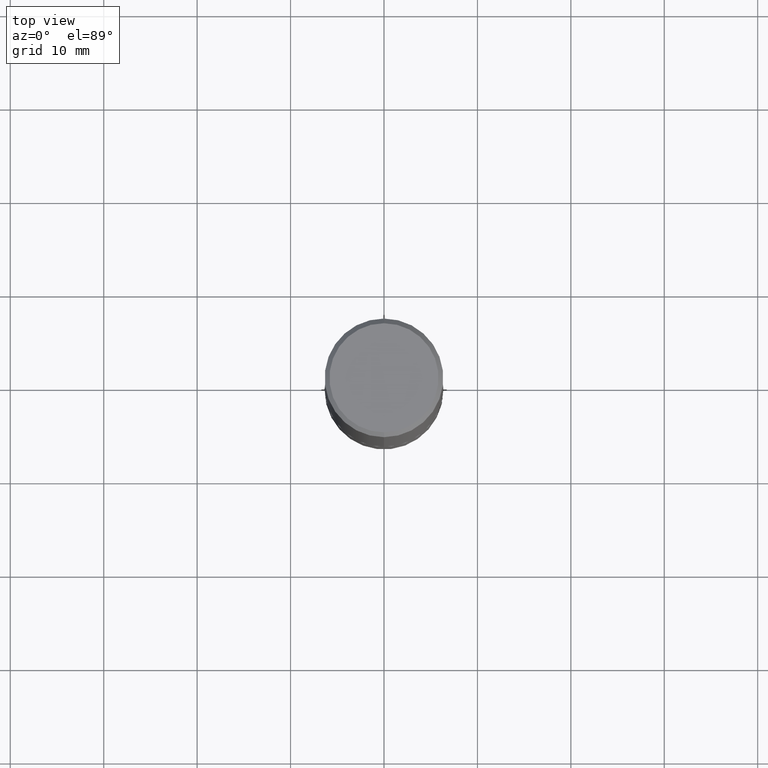
[diagram: clean part render]
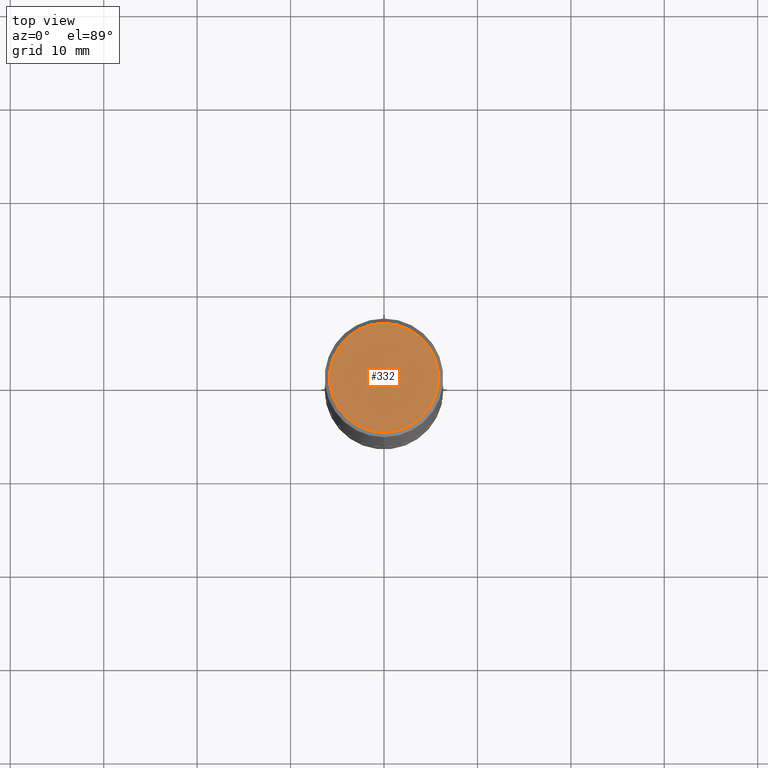
[diagram: same view with one face highlighted and labeled with its STEP entity id]
A machine part, top view. The second image highlights one B-rep face of the part: STEP entity #332.
In plain terms, the highlighted planar face has unit normal (0, -0, -1).
Its self-contained STEP definition (entity closure, byte-faithful):
#5 = CARTESIAN_POINT ( 'NONE',  ( -1.646519519465166573E-15, -0.2299999999999998712, 9.266556627535495054E-16 ) ) ;
#27 = FACE_OUTER_BOUND ( 'NONE', #357, .T. ) ;
#37 = AXIS2_PLACEMENT_3D ( 'NONE', #320, #67, #351 ) ;
#38 = DIRECTION ( 'NONE',  ( -2.445729767687599458E-29, 3.491107627118612255E-15, 1.000000000000000000 ) ) ;
#49 = VERTEX_POINT ( 'NONE', #5 ) ;
#67 = DIRECTION ( 'NONE',  ( 2.445729767687598898E-29, -3.491107627118612649E-15, -1.000000000000000000 ) ) ;
#85 = ORIENTED_EDGE ( 'NONE', *, *, #398, .T. ) ;
#97 = CARTESIAN_POINT ( 'NONE',  ( 1.675911042644703577E-15, 0.2299999999999998712, -6.792538457210110194E-16 ) ) ;
#111 = EDGE_CURVE ( 'NONE', #49, #312, #183, .T. ) ;
#140 = DIRECTION ( 'NONE',  ( -6.982962677686265922E-15, -1.000000000000000000, 3.491107627118611860E-15 ) ) ;
#143 = CARTESIAN_POINT ( 'NONE',  ( -3.025389942482403152E-45, 4.318531852026494479E-31, 1.237009085162692923E-16 ) ) ;
#171 = CARTESIAN_POINT ( 'NONE',  ( -3.025389942482403152E-45, 4.318531852026494479E-31, 1.237009085162692923E-16 ) ) ;
#172 = DIRECTION ( 'NONE',  ( -6.982962677686265922E-15, -1.000000000000000000, 3.491107627118611860E-15 ) ) ;
#173 = AXIS2_PLACEMENT_3D ( 'NONE', #143, #38, #172 ) ;
#183 = CIRCLE ( 'NONE', #319, 0.2299999999999998712 ) ;
#194 = DIRECTION ( 'NONE',  ( -2.445729767687599458E-29, 3.491107627118612255E-15, 1.000000000000000000 ) ) ;
#195 = PLANE ( 'NONE',  #37 ) ;
#247 = ORIENTED_EDGE ( 'NONE', *, *, #111, .T. ) ;
#312 = VERTEX_POINT ( 'NONE', #97 ) ;
#319 = AXIS2_PLACEMENT_3D ( 'NONE', #171, #194, #140 ) ;
#320 = CARTESIAN_POINT ( 'NONE',  ( 1.606081415867840278E-15, 0.2299999999999998712, -7.411042999791457395E-16 ) ) ;
#332 = ADVANCED_FACE ( 'NONE', ( #27 ), #195, .F. ) ;
#351 = DIRECTION ( 'NONE',  ( 6.982962677686265922E-15, 1.000000000000000000, -3.491107627118612649E-15 ) ) ;
#357 = EDGE_LOOP ( 'NONE', ( #85, #247 ) ) ;
#371 = CIRCLE ( 'NONE', #173, 0.2299999999999998712 ) ;
#398 = EDGE_CURVE ( 'NONE', #312, #49, #371, .T. ) ;